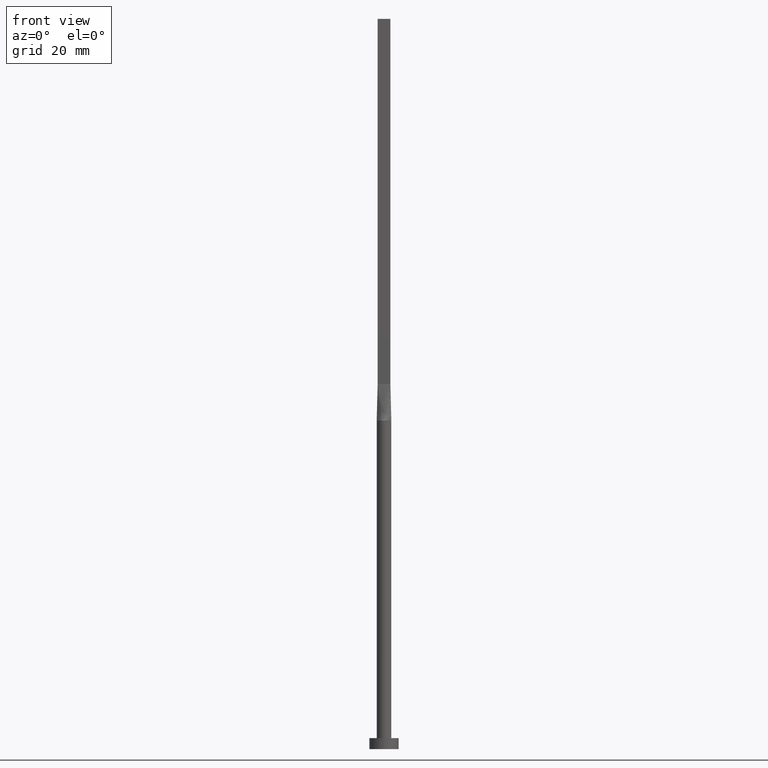
[diagram: clean part render]
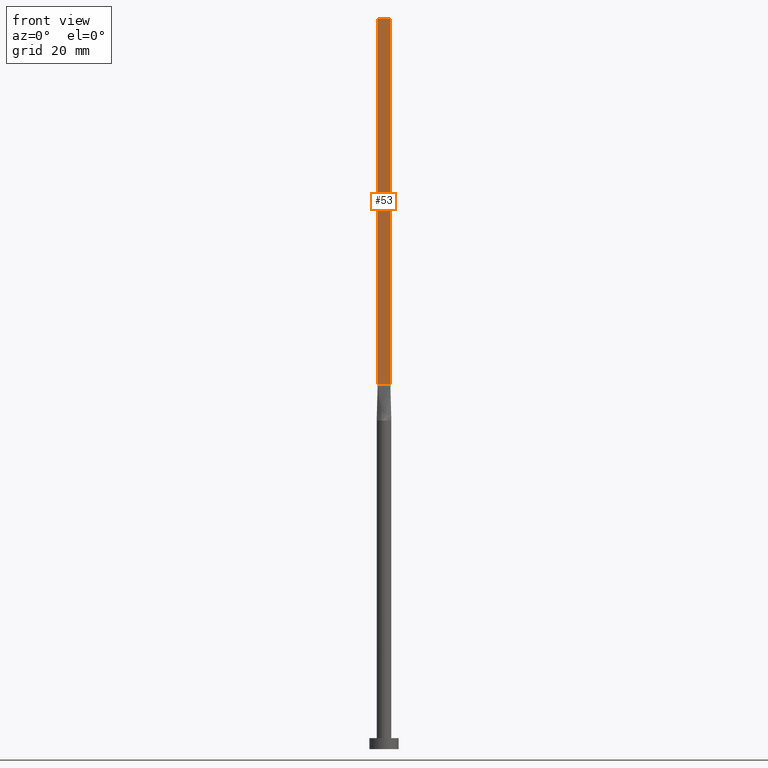
[diagram: same view with one face highlighted and labeled with its STEP entity id]
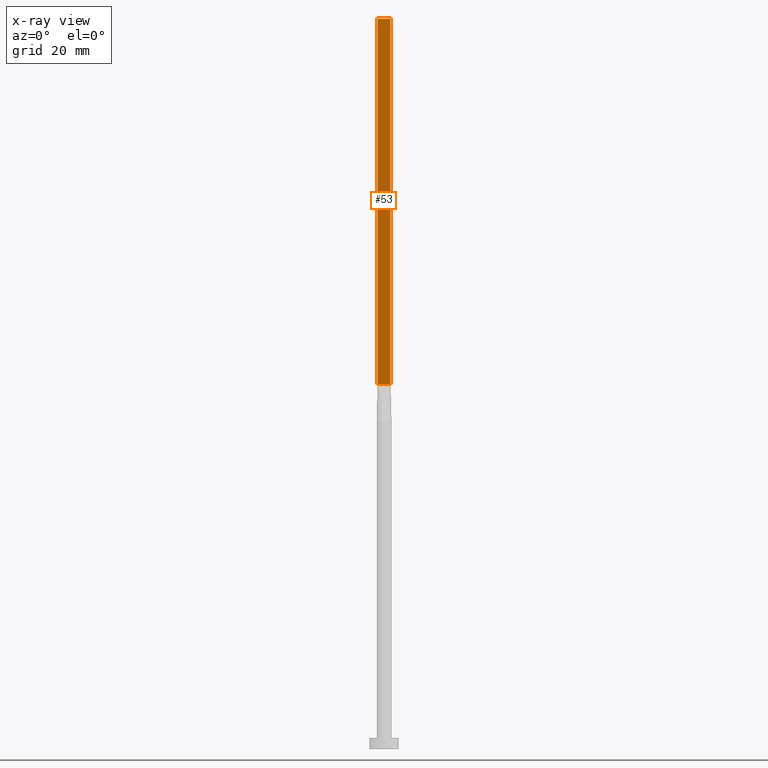
[diagram: x-ray of the same camera — body ghosted, the highlighted face saturated]
A machine part, front view. The second image highlights one B-rep face of the part: STEP entity #53.
The next image is the same camera in x-ray: the body ghosted, the highlighted face saturated — about 0% of this face is hidden behind the body in this view.
In plain terms, the highlighted planar face has unit normal (0, 1, 0).
Its self-contained STEP definition (entity closure, byte-faithful):
#23 = FACE_OUTER_BOUND ( 'NONE', #76, .T. ) ;
#39 = CARTESIAN_POINT ( 'NONE',  ( -1.750000000000000000, -0.3999999999999996891, 99.99999999999998579 ) ) ;
#53 = ADVANCED_FACE ( 'NONE', ( #23 ), #325, .F. ) ;
#61 = VECTOR ( 'NONE', #285, 1000.000000000000000 ) ;
#76 = EDGE_LOOP ( 'NONE', ( #106, #305, #100, #502 ) ) ;
#86 = VERTEX_POINT ( 'NONE', #267 ) ;
#100 = ORIENTED_EDGE ( 'NONE', *, *, #482, .F. ) ;
#106 = ORIENTED_EDGE ( 'NONE', *, *, #276, .T. ) ;
#108 = CARTESIAN_POINT ( 'NONE',  ( 1.750000000000000000, -0.3999999999999996891, 200.0000000000000000 ) ) ;
#148 = CARTESIAN_POINT ( 'NONE',  ( -1.750000000000000000, -0.3999999999999996891, 200.0000000000000000 ) ) ;
#155 = DIRECTION ( 'NONE',  ( 0.000000000000000000, 1.000000000000000000, 0.000000000000000000 ) ) ;
#190 = VERTEX_POINT ( 'NONE', #412 ) ;
#222 = VERTEX_POINT ( 'NONE', #39 ) ;
#243 = DIRECTION ( 'NONE',  ( 0.000000000000000000, -0.000000000000000000, 1.000000000000000000 ) ) ;
#244 = VECTOR ( 'NONE', #455, 1000.000000000000000 ) ;
#267 = CARTESIAN_POINT ( 'NONE',  ( -1.750000000000000000, -0.3999999999999996891, 200.0000000000000000 ) ) ;
#276 = EDGE_CURVE ( 'NONE', #222, #507, #328, .T. ) ;
#285 = DIRECTION ( 'NONE',  ( -0.000000000000000000, -0.000000000000000000, -1.000000000000000000 ) ) ;
#287 = EDGE_CURVE ( 'NONE', #190, #507, #418, .T. ) ;
#303 = VECTOR ( 'NONE', #406, 1000.000000000000000 ) ;
#305 = ORIENTED_EDGE ( 'NONE', *, *, #287, .F. ) ;
#325 = PLANE ( 'NONE',  #382 ) ;
#328 = LINE ( 'NONE', #509, #244 ) ;
#333 = CARTESIAN_POINT ( 'NONE',  ( -1.750000000000000000, -0.3999999999999996891, 200.0000000000000000 ) ) ;
#346 = CARTESIAN_POINT ( 'NONE',  ( 1.750000000000000000, -0.3999999999999996891, 99.99999999999998579 ) ) ;
#372 = VECTOR ( 'NONE', #579, 1000.000000000000000 ) ;
#382 = AXIS2_PLACEMENT_3D ( 'NONE', #148, #155, #243 ) ;
#406 = DIRECTION ( 'NONE',  ( -0.000000000000000000, -0.000000000000000000, -1.000000000000000000 ) ) ;
#412 = CARTESIAN_POINT ( 'NONE',  ( 1.750000000000000000, -0.3999999999999996891, 200.0000000000000000 ) ) ;
#418 = LINE ( 'NONE', #108, #61 ) ;
#455 = DIRECTION ( 'NONE',  ( 1.000000000000000000, 0.000000000000000000, 0.000000000000000000 ) ) ;
#482 = EDGE_CURVE ( 'NONE', #86, #190, #570, .T. ) ;
#483 = CARTESIAN_POINT ( 'NONE',  ( -1.750000000000000000, -0.3999999999999996891, 200.0000000000000000 ) ) ;
#500 = EDGE_CURVE ( 'NONE', #86, #222, #533, .T. ) ;
#502 = ORIENTED_EDGE ( 'NONE', *, *, #500, .T. ) ;
#507 = VERTEX_POINT ( 'NONE', #346 ) ;
#509 = CARTESIAN_POINT ( 'NONE',  ( -1.750000000000000000, -0.3999999999999996891, 99.99999999999998579 ) ) ;
#533 = LINE ( 'NONE', #483, #303 ) ;
#570 = LINE ( 'NONE', #333, #372 ) ;
#579 = DIRECTION ( 'NONE',  ( 1.000000000000000000, 0.000000000000000000, 0.000000000000000000 ) ) ;